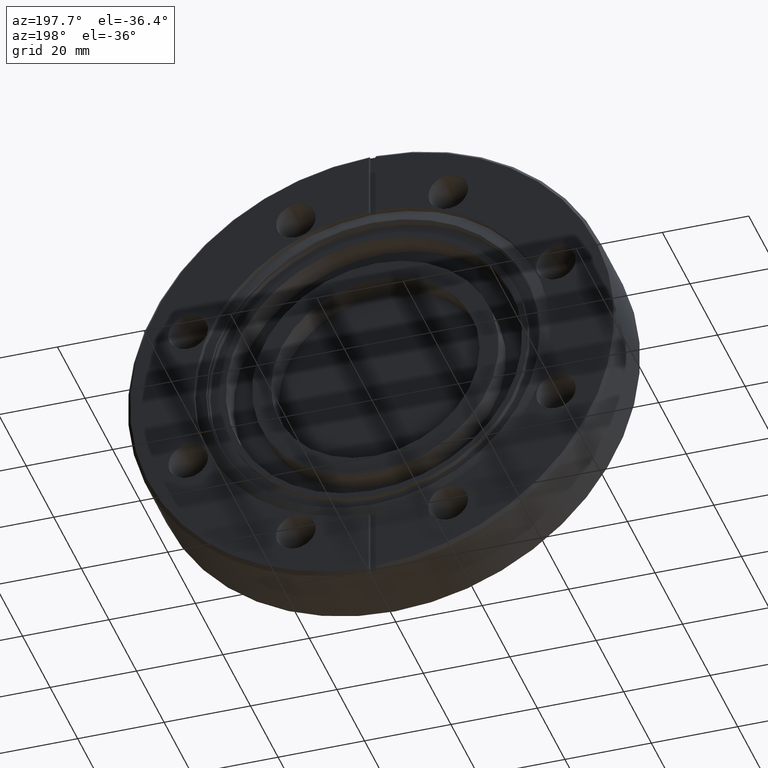
[diagram: clean part render]
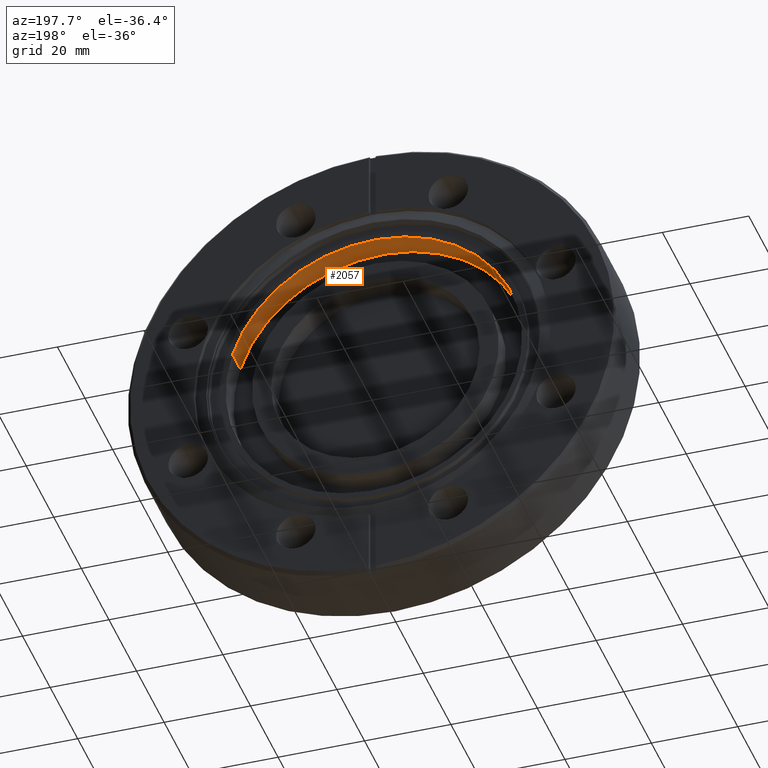
[diagram: same view with one face highlighted and labeled with its STEP entity id]
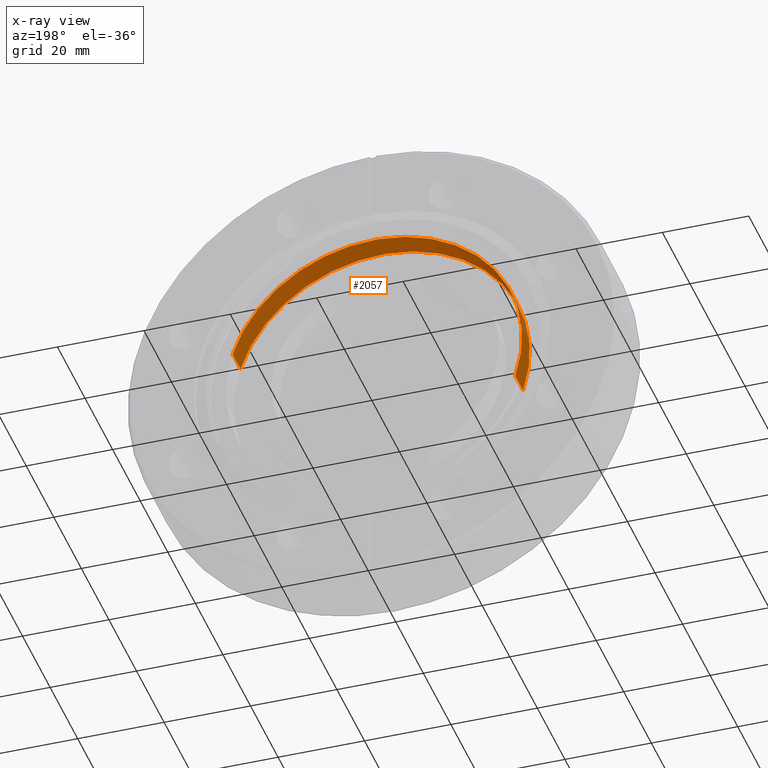
[diagram: x-ray of the same camera — body ghosted, the highlighted face saturated]
A machine part, auxiliary view. The second image highlights one B-rep face of the part: STEP entity #2057.
The next image is the same camera in x-ray: the body ghosted, the highlighted face saturated — about 0% of this face is hidden behind the body in this view.
In plain terms, the highlighted cylindrical surface (partial cylindrical patch) has radius 34.29 mm, axis along (-0, 1, -0).
Its self-contained STEP definition (entity closure, byte-faithful):
#218 = EDGE_LOOP ( 'NONE', ( #2483, #1001, #911, #2453 ) ) ;
#270 = DIRECTION ( 'NONE',  ( 0.9539663278735834900, 0.0000000000000000000, 0.2999137297347200200 ) ) ;
#271 = CYLINDRICAL_SURFACE ( 'NONE', #586, 1.350000000000000100 ) ;
#273 = CARTESIAN_POINT ( 'NONE',  ( -6.505213034914319100E-020, 0.6250000000000000000, -5.551115123125458300E-019 ) ) ;
#274 = FACE_OUTER_BOUND ( 'NONE', #218, .T. ) ;
#277 = DIRECTION ( 'NONE',  ( -6.505213034913025100E-018, 1.000000000000000000, -5.551115123125781500E-017 ) ) ;
#366 = AXIS2_PLACEMENT_3D ( 'NONE', #800, #798, #797 ) ;
#577 = CIRCLE ( 'NONE', #622, 1.350000000000000100 ) ;
#586 = AXIS2_PLACEMENT_3D ( 'NONE', #273, #277, #270 ) ;
#588 = CIRCLE ( 'NONE', #366, 1.350000000000000100 ) ;
#622 = AXIS2_PLACEMENT_3D ( 'NONE', #806, #805, #803 ) ;
#797 = DIRECTION ( 'NONE',  ( 0.9539663278735834900, 0.0000000000000000000, 0.2999137297347200200 ) ) ;
#798 = DIRECTION ( 'NONE',  ( -6.505213034913025100E-018, 1.000000000000000000, -5.551115123125781500E-017 ) ) ;
#800 = CARTESIAN_POINT ( 'NONE',  ( -6.505213034914319100E-020, 0.6250000000000000000, -5.551115123125458300E-019 ) ) ;
#803 = DIRECTION ( 'NONE',  ( 0.9539663278735834900, 5.058977766044931300E-017, 0.2999137297347200200 ) ) ;
#805 = DIRECTION ( 'NONE',  ( -6.505213034913025100E-018, 1.000000000000000000, -5.551115123125781500E-017 ) ) ;
#806 = CARTESIAN_POINT ( 'NONE',  ( 1.398620802506288200E-018, 0.3999999999999999700, 1.193489751472046800E-017 ) ) ;
#911 = ORIENTED_EDGE ( 'NONE', *, *, #2233, .T. ) ;
#1001 = ORIENTED_EDGE ( 'NONE', *, *, #2301, .T. ) ;
#1035 = VERTEX_POINT ( 'NONE', #1861 ) ;
#1119 = VERTEX_POINT ( 'NONE', #1815 ) ;
#1141 = VERTEX_POINT ( 'NONE', #1926 ) ;
#1340 = VERTEX_POINT ( 'NONE', #1469 ) ;
#1469 = CARTESIAN_POINT ( 'NONE',  ( 1.287854542629337700, 0.4000000000000000200, 0.4048835351418720300 ) ) ;
#1609 = DIRECTION ( 'NONE',  ( -6.505213034913025100E-018, 1.000000000000000000, -5.551115123125781500E-017 ) ) ;
#1610 = CARTESIAN_POINT ( 'NONE',  ( -1.287854542629337700, 0.6250000000000000000, -0.4048835351418722000 ) ) ;
#1611 = LINE ( 'NONE', #1610, #2189 ) ;
#1710 = DIRECTION ( 'NONE',  ( -6.505213034913025100E-018, 1.000000000000000000, -5.551115123125781500E-017 ) ) ;
#1717 = LINE ( 'NONE', #1719, #2180 ) ;
#1719 = CARTESIAN_POINT ( 'NONE',  ( 1.287854542629337700, 0.6250000000000000000, 0.4048835351418720300 ) ) ;
#1815 = CARTESIAN_POINT ( 'NONE',  ( 1.287854542629337700, 0.6250000000000000000, 0.4048835351418720300 ) ) ;
#1861 = CARTESIAN_POINT ( 'NONE',  ( -1.287854542629337500, 0.3999999999999999700, -0.4048835351418720900 ) ) ;
#1926 = CARTESIAN_POINT ( 'NONE',  ( -1.287854542629337500, 0.6250000000000000000, -0.4048835351418720900 ) ) ;
#2057 = ADVANCED_FACE ( 'NONE', ( #274 ), #271, .F. ) ;
#2180 = VECTOR ( 'NONE', #1710, 39.37007874015748100 ) ;
#2189 = VECTOR ( 'NONE', #1609, 39.37007874015748100 ) ;
#2232 = EDGE_CURVE ( 'NONE', #1035, #1340, #577, .T. ) ;
#2233 = EDGE_CURVE ( 'NONE', #1141, #1119, #588, .T. ) ;
#2281 = EDGE_CURVE ( 'NONE', #1340, #1119, #1717, .T. ) ;
#2301 = EDGE_CURVE ( 'NONE', #1035, #1141, #1611, .T. ) ;
#2453 = ORIENTED_EDGE ( 'NONE', *, *, #2281, .F. ) ;
#2483 = ORIENTED_EDGE ( 'NONE', *, *, #2232, .F. ) ;